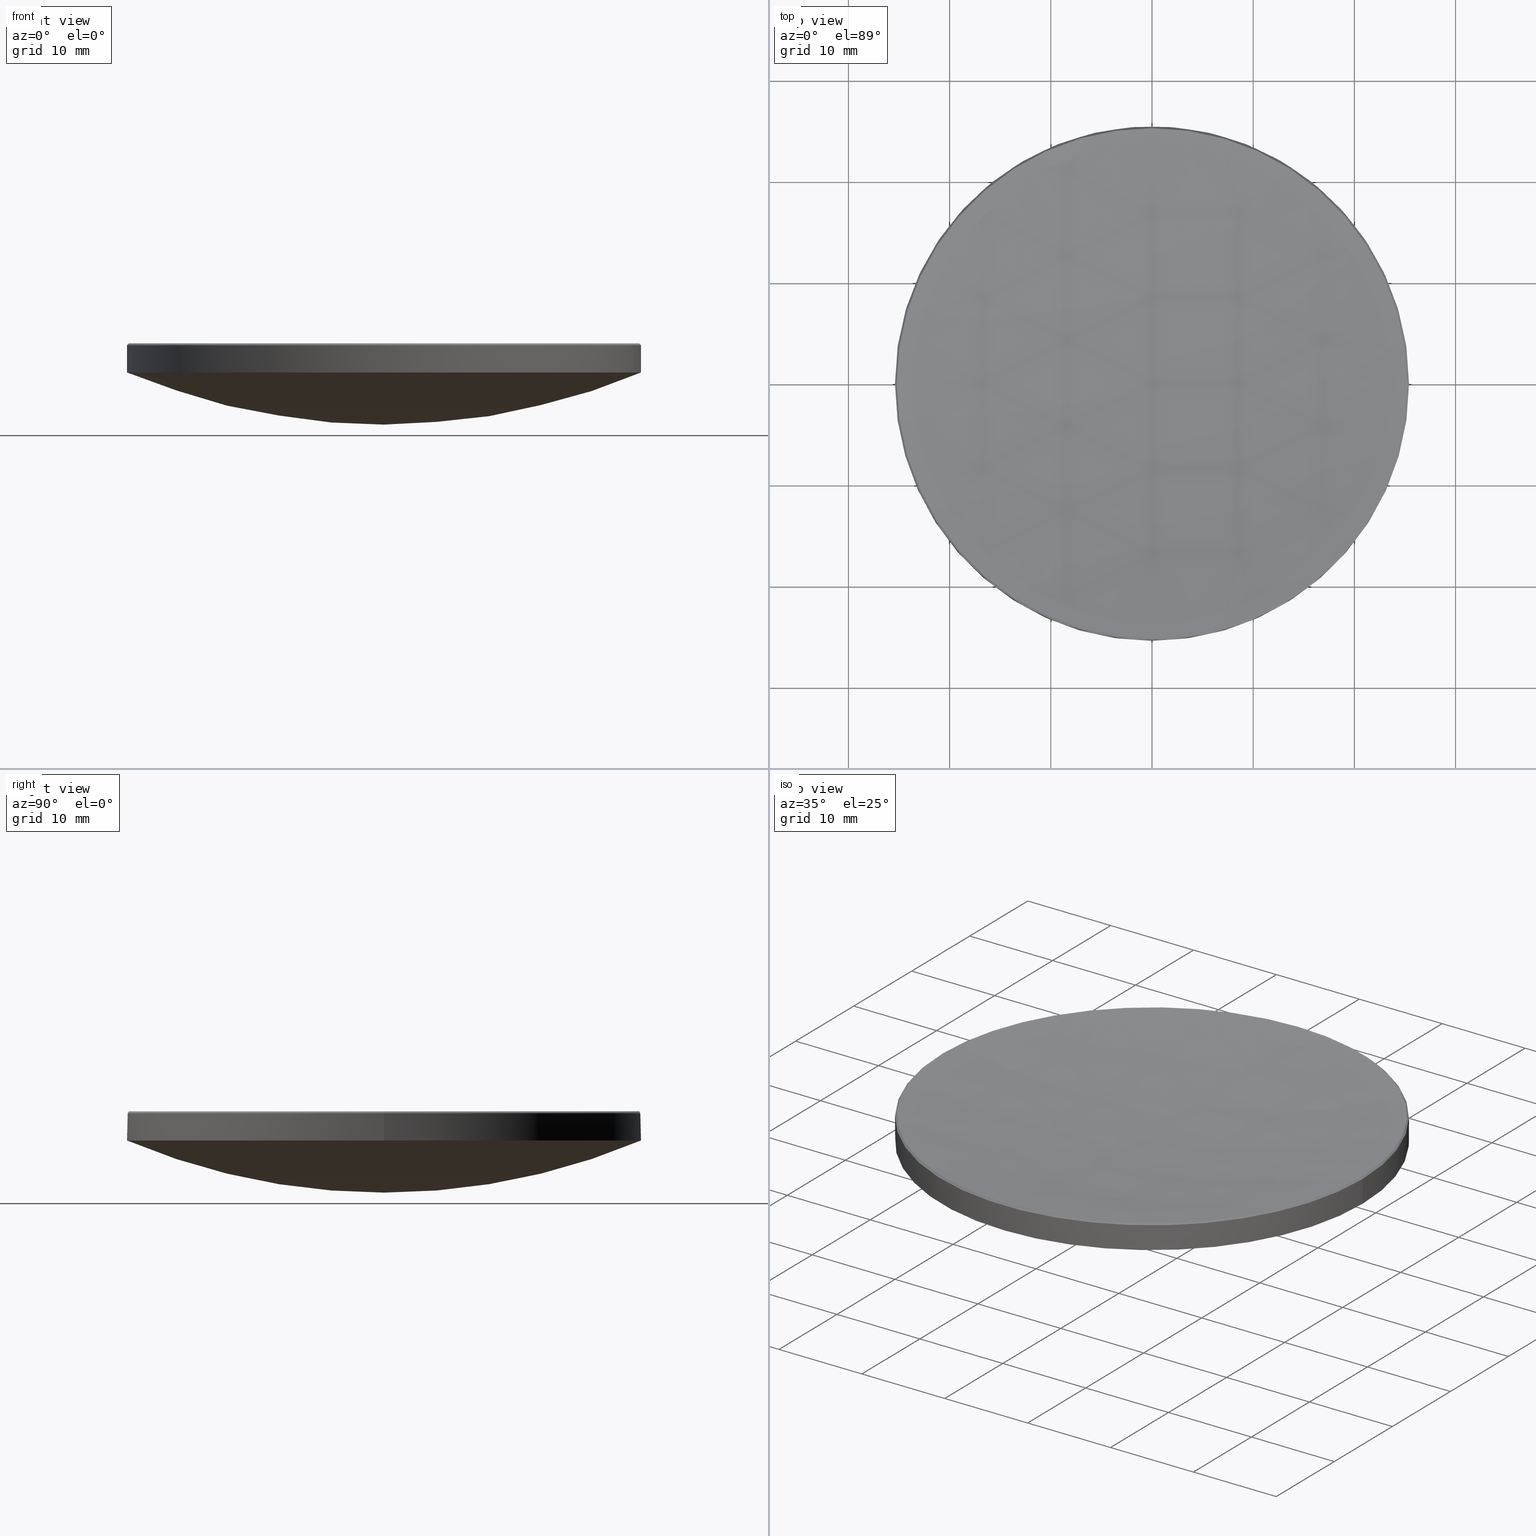
[diagram: canonical four-view strip — front | top / right | iso, engineering-drawing reading convention]
A machine part, canonical four-view strip (front | top / right | iso — engineering-drawing reading convention). The complete STEP part file that produces these views, byte-faithful:
ISO-10303-21;
HEADER;
FILE_DESCRIPTION (( 'STEP AP214' ),
    '1' );
FILE_NAME ('GLM1-050B-200.STEP',
    '2024-08-09T02:25:23',
    ( 'Windows User' ),
    ( 'P R C' ),
    'SwSTEP 2.0',
    'SolidWorks 2022',
    '' );
FILE_SCHEMA (( 'AUTOMOTIVE_DESIGN' ));
ENDSEC;

DATA;
#1 = CONICAL_SURFACE ( 'NONE', #201, 25.22595727592941373, 0.7853981633974184140 ) ;
#2 = CARTESIAN_POINT ( 'NONE',  ( 25.22595727592940662, 3.099945826586880264E-15, 15.87404272407055927 ) ) ;
#3 = CARTESIAN_POINT ( 'NONE',  ( 25.39999999999999858, 3.110602869834276865E-15, 15.69999999999996376 ) ) ;
#4 = EDGE_CURVE ( 'NONE', #184, #187, #254, .T. ) ;
#5 = DIRECTION ( 'NONE',  ( 1.000000000000000000, 0.000000000000000000, 0.000000000000000000 ) ) ;
#6 = VECTOR ( 'NONE', #169, 1000.000000000000000 ) ;
#7 = SURFACE_STYLE_USAGE ( .BOTH. , #22 ) ;
#8 =( NAMED_UNIT ( * ) PLANE_ANGLE_UNIT ( ) SI_UNIT ( $, .RADIAN. ) );
#9 = PRESENTATION_STYLE_ASSIGNMENT (( #7 ) ) ;
#10 = CIRCLE ( 'NONE', #280, 25.39999999999999503 ) ;
#11 = ORIENTED_EDGE ( 'NONE', *, *, #240, .T. ) ;
#12 = EDGE_LOOP ( 'NONE', ( #33, #143, #35, #123, #15 ) ) ;
#13 = PRODUCT_DEFINITION_SHAPE ( 'NONE', 'NONE',  #171 ) ;
#14 = EDGE_LOOP ( 'NONE', ( #213, #42, #232, #189, #61 ) ) ;
#15 = ORIENTED_EDGE ( 'NONE', *, *, #116, .F. ) ;
#16 = AXIS2_PLACEMENT_3D ( 'NONE', #89, #165, #255 ) ;
#17 = FACE_OUTER_BOUND ( 'NONE', #31, .T. ) ;
#18 = DIRECTION ( 'NONE',  ( 1.000000000000000000, 0.000000000000000000, 0.000000000000000000 ) ) ;
#19 = FACE_OUTER_BOUND ( 'NONE', #14, .T. ) ;
#20 = CYLINDRICAL_SURFACE ( 'NONE', #36, 25.39999999999999858 ) ;
#21 = VECTOR ( 'NONE', #74, 1000.000000000000000 ) ;
#22 = SURFACE_SIDE_STYLE ('',( #206 ) ) ;
#23 = CLOSED_SHELL ( 'NONE', ( #27, #129, #83, #175, #247, #88, #233, #212 ) ) ;
#24 = FACE_OUTER_BOUND ( 'NONE', #62, .T. ) ;
#25 = PRODUCT_RELATED_PRODUCT_CATEGORY ( 'part', '', ( #67 ) ) ;
#26 = UNCERTAINTY_MEASURE_WITH_UNIT (LENGTH_MEASURE( 1.000000000000000082E-05 ), #181, 'distance_accuracy_value', 'NONE');
#27 = ADVANCED_FACE ( 'NONE', ( #192 ), #1, .T. ) ;
#28 = DIRECTION ( 'NONE',  ( 1.000000000000000000, 0.000000000000000000, 0.000000000000000000 ) ) ;
#29 = AXIS2_PLACEMENT_3D ( 'NONE', #110, #93, #18 ) ;
#30 = ORIENTED_EDGE ( 'NONE', *, *, #162, .T. ) ;
#31 = EDGE_LOOP ( 'NONE', ( #177, #228, #146, #86 ) ) ;
#32 = STYLED_ITEM ( 'NONE', ( #107 ), #68 ) ;
#33 = ORIENTED_EDGE ( 'NONE', *, *, #92, .F. ) ;
#34 = SURFACE_SIDE_STYLE ('',( #60 ) ) ;
#35 = ORIENTED_EDGE ( 'NONE', *, *, #53, .F. ) ;
#36 = AXIS2_PLACEMENT_3D ( 'NONE', #128, #216, #72 ) ;
#37 = EDGE_CURVE ( 'NONE', #82, #161, #155, .T. ) ;
#38 = CARTESIAN_POINT ( 'NONE',  ( 0.000000000000000000, 0.000000000000000000, 0.000000000000000000 ) ) ;
#39 = ORIENTED_EDGE ( 'NONE', *, *, #275, .T. ) ;
#40 = PRESENTATION_LAYER_ASSIGNMENT (  '', '', ( #32 ) ) ;
#41 = CARTESIAN_POINT ( 'NONE',  ( 0.000000000000000000, 0.000000000000000000, 15.87404272407055927 ) ) ;
#42 = ORIENTED_EDGE ( 'NONE', *, *, #250, .T. ) ;
#43 = CONICAL_SURFACE ( 'NONE', #272, 25.22595727592941373, 0.7853981633974184140 ) ;
#44 = CARTESIAN_POINT ( 'NONE',  ( 0.000000000000000000, 25.39999999999998437, 12.99999999999999822 ) ) ;
#45 = FACE_OUTER_BOUND ( 'NONE', #100, .T. ) ;
#46 = CARTESIAN_POINT ( 'NONE',  ( 0.000000000000000000, 0.000000000000000000, 15.87404272407055927 ) ) ;
#47 = SPHERICAL_SURFACE ( 'NONE', #190, 65.15999999999999659 ) ;
#48 = CARTESIAN_POINT ( 'NONE',  ( -25.22595727592940662, 0.000000000000000000, 15.87404272407055927 ) ) ;
#49 =( NAMED_UNIT ( * ) PLANE_ANGLE_UNIT ( ) SI_UNIT ( $, .RADIAN. ) );
#50 = CIRCLE ( 'NONE', #197, 171.5999999999999659 ) ;
#51 = CARTESIAN_POINT ( 'NONE',  ( 0.000000000000000000, 0.000000000000000000, 13.00000000000000000 ) ) ;
#52 = DIRECTION ( 'NONE',  ( 0.000000000000000000, 0.000000000000000000, -1.000000000000000000 ) ) ;
#53 = EDGE_CURVE ( 'NONE', #229, #187, #109, .T. ) ;
#54 = CARTESIAN_POINT ( 'NONE',  ( -25.39999999999999858, 0.000000000000000000, 15.69999999999996376 ) ) ;
#55 = DIRECTION ( 'NONE',  ( 0.000000000000000000, 1.000000000000000000, 0.000000000000000000 ) ) ;
#56 = AXIS2_PLACEMENT_3D ( 'NONE', #199, #282, #242 ) ;
#57 = ORIENTED_EDGE ( 'NONE', *, *, #262, .F. ) ;
#58 = UNCERTAINTY_MEASURE_WITH_UNIT (LENGTH_MEASURE( 1.000000000000000082E-05 ), #80, 'distance_accuracy_value', 'NONE');
#59 = ORIENTED_EDGE ( 'NONE', *, *, #227, .T. ) ;
#60 = SURFACE_STYLE_FILL_AREA ( #188 ) ;
#61 = ORIENTED_EDGE ( 'NONE', *, *, #162, .F. ) ;
#62 = EDGE_LOOP ( 'NONE', ( #75, #105, #30, #144, #39 ) ) ;
#63 = CIRCLE ( 'NONE', #269, 65.15999999999999659 ) ;
#64 = CARTESIAN_POINT ( 'NONE',  ( 0.000000000000000000, 0.000000000000000000, 15.69999999999996376 ) ) ;
#65 = DIRECTION ( 'NONE',  ( -0.000000000000000000, -0.000000000000000000, 1.000000000000000000 ) ) ;
#66 = CIRCLE ( 'NONE', #153, 25.39999999999999858 ) ;
#67 = PRODUCT ( 'GLM1-050B-200', 'GLM1-050B-200', '', ( #191 ) ) ;
#68 = ADVANCED_BREP_SHAPE_REPRESENTATION ( 'GLM1-050B-200', ( #237, #178 ), #207 ) ;
#69 = CARTESIAN_POINT ( 'NONE',  ( 0.000000000000000000, 3.989899271622076049E-15, 7.845546410311113661 ) ) ;
#70 = CARTESIAN_POINT ( 'NONE',  ( -25.22595727592941373, 0.000000000000000000, 15.87404272407055927 ) ) ;
#71 = DIRECTION ( 'NONE',  ( -1.000000000000000000, 1.224646799147353207E-16, 0.000000000000000000 ) ) ;
#72 = DIRECTION ( 'NONE',  ( -1.000000000000000000, 0.000000000000000000, 0.000000000000000000 ) ) ;
#73 = EDGE_CURVE ( 'NONE', #187, #229, #66, .T. ) ;
#74 = DIRECTION ( 'NONE',  ( -0.000000000000000000, -0.000000000000000000, -1.000000000000000000 ) ) ;
#75 = ORIENTED_EDGE ( 'NONE', *, *, #250, .F. ) ;
#76 = CIRCLE ( 'NONE', #277, 171.5999999999999659 ) ;
#77 = MECHANICAL_DESIGN_GEOMETRIC_PRESENTATION_REPRESENTATION (  '', ( #32 ), #258 ) ;
#78 = DIRECTION ( 'NONE',  ( 1.000000000000000000, 0.000000000000000000, 0.000000000000000000 ) ) ;
#79 = PRESENTATION_LAYER_ASSIGNMENT (  '', '', ( #194 ) ) ;
#80 =( LENGTH_UNIT ( ) NAMED_UNIT ( * ) SI_UNIT ( .MILLI., .METRE. ) );
#81 = SURFACE_STYLE_USAGE ( .BOTH. , #34 ) ;
#82 = VERTEX_POINT ( 'NONE', #69 ) ;
#83 = ADVANCED_FACE ( 'NONE', ( #45 ), #47, .T. ) ;
#84 = EDGE_LOOP ( 'NONE', ( #208, #11, #57, #186 ) ) ;
#85 = FILL_AREA_STYLE_COLOUR ( '', #244 ) ;
#86 = ORIENTED_EDGE ( 'NONE', *, *, #92, .T. ) ;
#87 = ORIENTED_EDGE ( 'NONE', *, *, #222, .T. ) ;
#88 = ADVANCED_FACE ( 'NONE', ( #111 ), #195, .T. ) ;
#89 = CARTESIAN_POINT ( 'NONE',  ( 0.000000000000000000, 0.000000000000000000, 73.00554641031111203 ) ) ;
#90 = CARTESIAN_POINT ( 'NONE',  ( 0.000000000000000000, 0.000000000000000000, 15.87404272407055927 ) ) ;
#91 = DIRECTION ( 'NONE',  ( -0.000000000000000000, -0.000000000000000000, 1.000000000000000000 ) ) ;
#92 = EDGE_CURVE ( 'NONE', #184, #274, #257, .T. ) ;
#93 = DIRECTION ( 'NONE',  ( -0.000000000000000000, -0.000000000000000000, 1.000000000000000000 ) ) ;
#94 = CARTESIAN_POINT ( 'NONE',  ( 0.000000000000000000, 0.000000000000000000, 15.87404272407055927 ) ) ;
#95 = DIRECTION ( 'NONE',  ( -1.224646799147353207E-16, -1.000000000000000000, 0.000000000000000000 ) ) ;
#96 = CYLINDRICAL_SURFACE ( 'NONE', #133, 25.39999999999999858 ) ;
#97 = APPLICATION_CONTEXT ( 'automotive_design' ) ;
#98 = CARTESIAN_POINT ( 'NONE',  ( 25.39999999999999858, 3.110602869834276865E-15, 20.00000000000000000 ) ) ;
#99 = FILL_AREA_STYLE_COLOUR ( '', #185 ) ;
#100 = EDGE_LOOP ( 'NONE', ( #235, #211, #120, #108 ) ) ;
#101 = PRODUCT_DEFINITION_CONTEXT ( 'detailed design', #182, 'design' ) ;
#102 = EDGE_CURVE ( 'NONE', #160, #161, #173, .T. ) ;
#103 = CIRCLE ( 'NONE', #136, 25.22595727592940662 ) ;
#104 = ORIENTED_EDGE ( 'NONE', *, *, #145, .F. ) ;
#105 = ORIENTED_EDGE ( 'NONE', *, *, #73, .T. ) ;
#106 = ORIENTED_EDGE ( 'NONE', *, *, #73, .F. ) ;
#107 = PRESENTATION_STYLE_ASSIGNMENT (( #81 ) ) ;
#108 = ORIENTED_EDGE ( 'NONE', *, *, #148, .F. ) ;
#109 = CIRCLE ( 'NONE', #263, 25.39999999999999858 ) ;
#110 = CARTESIAN_POINT ( 'NONE',  ( 0.000000000000000000, 0.000000000000000000, 15.87404272407055927 ) ) ;
#111 = FACE_OUTER_BOUND ( 'NONE', #84, .T. ) ;
#112 = DIRECTION ( 'NONE',  ( 0.000000000000000000, 1.000000000000000000, 0.000000000000000000 ) ) ;
#113 = CARTESIAN_POINT ( 'NONE',  ( -25.39999999999999858, 0.000000000000000000, 20.00000000000000000 ) ) ;
#114 =( GEOMETRIC_REPRESENTATION_CONTEXT ( 3 ) GLOBAL_UNCERTAINTY_ASSIGNED_CONTEXT ( ( #58 ) ) GLOBAL_UNIT_ASSIGNED_CONTEXT ( ( #80, #49, #154 ) ) REPRESENTATION_CONTEXT ( 'NONE', 'WORKASPACE' ) );
#115 = CARTESIAN_POINT ( 'NONE',  ( 0.000000000000000000, 0.000000000000000000, 73.00554641031111203 ) ) ;
#116 = EDGE_CURVE ( 'NONE', #274, #215, #103, .T. ) ;
#117 = CIRCLE ( 'NONE', #150, 25.22595727592940662 ) ;
#118 = CARTESIAN_POINT ( 'NONE',  ( 0.000000000000000000, 0.000000000000000000, 185.6097522242018840 ) ) ;
#119 =( NAMED_UNIT ( * ) SI_UNIT ( $, .STERADIAN. ) SOLID_ANGLE_UNIT ( ) );
#120 = ORIENTED_EDGE ( 'NONE', *, *, #102, .F. ) ;
#121 = UNCERTAINTY_MEASURE_WITH_UNIT (LENGTH_MEASURE( 1.000000000000000082E-05 ), #278, 'distance_accuracy_value', 'NONE');
#122 = AXIS2_PLACEMENT_3D ( 'NONE', #90, #65, #219 ) ;
#123 = ORIENTED_EDGE ( 'NONE', *, *, #202, .F. ) ;
#124 = ORIENTED_EDGE ( 'NONE', *, *, #222, .F. ) ;
#125 = DIRECTION ( 'NONE',  ( 0.000000000000000000, 0.000000000000000000, -1.000000000000000000 ) ) ;
#126 = ORIENTED_EDGE ( 'NONE', *, *, #116, .T. ) ;
#127 = AXIS2_PLACEMENT_3D ( 'NONE', #172, #256, #259 ) ;
#128 = CARTESIAN_POINT ( 'NONE',  ( 0.000000000000000000, 0.000000000000000000, 20.00000000000000000 ) ) ;
#129 = ADVANCED_FACE ( 'NONE', ( #17 ), #217, .F. ) ;
#130 = CARTESIAN_POINT ( 'NONE',  ( -3.110602869834275682E-15, -25.39999999999998437, 12.99999999999999822 ) ) ;
#131 = DIRECTION ( 'NONE',  ( 1.000000000000000000, 0.000000000000000000, 0.000000000000000000 ) ) ;
#132 = LINE ( 'NONE', #113, #6 ) ;
#133 = AXIS2_PLACEMENT_3D ( 'NONE', #225, #137, #158 ) ;
#134 = CARTESIAN_POINT ( 'NONE',  ( 0.000000000000000000, 0.000000000000000000, 15.69999999999996376 ) ) ;
#135 = DIRECTION ( 'NONE',  ( -1.000000000000000000, 0.000000000000000000, 0.000000000000000000 ) ) ;
#136 = AXIS2_PLACEMENT_3D ( 'NONE', #196, #91, #5 ) ;
#137 = DIRECTION ( 'NONE',  ( -0.000000000000000000, -0.000000000000000000, -1.000000000000000000 ) ) ;
#138 =( NAMED_UNIT ( * ) SI_UNIT ( $, .STERADIAN. ) SOLID_ANGLE_UNIT ( ) );
#139 = AXIS2_PLACEMENT_3D ( 'NONE', #239, #264, #149 ) ;
#140 = SHAPE_DEFINITION_REPRESENTATION ( #13, #68 ) ;
#141 = ORIENTED_EDGE ( 'NONE', *, *, #157, .F. ) ;
#142 =( NAMED_UNIT ( * ) PLANE_ANGLE_UNIT ( ) SI_UNIT ( $, .RADIAN. ) );
#143 = ORIENTED_EDGE ( 'NONE', *, *, #4, .T. ) ;
#144 = ORIENTED_EDGE ( 'NONE', *, *, #102, .T. ) ;
#145 = EDGE_CURVE ( 'NONE', #251, #184, #168, .T. ) ;
#146 = ORIENTED_EDGE ( 'NONE', *, *, #145, .T. ) ;
#147 = DIRECTION ( 'NONE',  ( 0.000000000000000000, 0.000000000000000000, -1.000000000000000000 ) ) ;
#148 = EDGE_CURVE ( 'NONE', #164, #160, #159, .T. ) ;
#149 = DIRECTION ( 'NONE',  ( 0.000000000000000000, 1.000000000000000000, 0.000000000000000000 ) ) ;
#150 = AXIS2_PLACEMENT_3D ( 'NONE', #94, #170, #270 ) ;
#151 = DIRECTION ( 'NONE',  ( -0.7071067811865263675, 0.000000000000000000, -0.7071067811865686670 ) ) ;
#152 = CARTESIAN_POINT ( 'NONE',  ( 25.39999999999999503, 3.110602869834276471E-15, 13.00000000000000000 ) ) ;
#153 = AXIS2_PLACEMENT_3D ( 'NONE', #134, #198, #131 ) ;
#154 =( NAMED_UNIT ( * ) SI_UNIT ( $, .STERADIAN. ) SOLID_ANGLE_UNIT ( ) );
#155 = CIRCLE ( 'NONE', #16, 65.15999999999999659 ) ;
#156 = FILL_AREA_STYLE ('',( #99 ) ) ;
#157 = EDGE_CURVE ( 'NONE', #273, #251, #50, .T. ) ;
#158 = DIRECTION ( 'NONE',  ( -1.000000000000000000, 0.000000000000000000, 0.000000000000000000 ) ) ;
#159 = CIRCLE ( 'NONE', #249, 25.39999999999999503 ) ;
#160 = VERTEX_POINT ( 'NONE', #261 ) ;
#161 = VERTEX_POINT ( 'NONE', #130 ) ;
#162 = EDGE_CURVE ( 'NONE', #229, #160, #132, .T. ) ;
#163 = CARTESIAN_POINT ( 'NONE',  ( 25.22595727592941373, 3.089288783339484453E-15, 15.87404272407055927 ) ) ;
#164 = VERTEX_POINT ( 'NONE', #44 ) ;
#165 = DIRECTION ( 'NONE',  ( -1.000000000000000000, 1.224646799147353207E-16, 0.000000000000000000 ) ) ;
#166 = DIRECTION ( 'NONE',  ( -0.000000000000000000, -0.000000000000000000, 1.000000000000000000 ) ) ;
#167 = DIRECTION ( 'NONE',  ( -1.000000000000000000, 0.000000000000000000, 0.000000000000000000 ) ) ;
#168 = CIRCLE ( 'NONE', #29, 25.22595727592940662 ) ;
#169 = DIRECTION ( 'NONE',  ( -0.000000000000000000, -0.000000000000000000, -1.000000000000000000 ) ) ;
#170 = DIRECTION ( 'NONE',  ( -0.000000000000000000, -0.000000000000000000, 1.000000000000000000 ) ) ;
#171 = PRODUCT_DEFINITION ( 'δ֪', '', #231, #101 ) ;
#172 = CARTESIAN_POINT ( 'NONE',  ( 0.000000000000000000, 0.000000000000000000, 73.00554641031111203 ) ) ;
#173 = CIRCLE ( 'NONE', #56, 25.39999999999999503 ) ;
#174 = LINE ( 'NONE', #98, #21 ) ;
#175 = ADVANCED_FACE ( 'NONE', ( #19 ), #20, .T. ) ;
#176 = DIRECTION ( 'NONE',  ( 0.000000000000000000, 0.000000000000000000, -1.000000000000000000 ) ) ;
#177 = ORIENTED_EDGE ( 'NONE', *, *, #227, .F. ) ;
#178 = AXIS2_PLACEMENT_3D ( 'NONE', #38, #226, #209 ) ;
#179 = APPLICATION_PROTOCOL_DEFINITION ( 'draft international standard', 'automotive_design', 1998, #97 ) ;
#180 = AXIS2_PLACEMENT_3D ( 'NONE', #51, #266, #78 ) ;
#181 =( LENGTH_UNIT ( ) NAMED_UNIT ( * ) SI_UNIT ( .MILLI., .METRE. ) );
#182 = APPLICATION_CONTEXT ( 'automotive_design' ) ;
#183 = APPLICATION_PROTOCOL_DEFINITION ( 'draft international standard', 'automotive_design', 1998, #182 ) ;
#184 = VERTEX_POINT ( 'NONE', #2 ) ;
#185 = COLOUR_RGB ( '',1.000000000000000000, 1.000000000000000000, 1.000000000000000000 ) ;
#186 = ORIENTED_EDGE ( 'NONE', *, *, #275, .F. ) ;
#187 = VERTEX_POINT ( 'NONE', #3 ) ;
#188 = FILL_AREA_STYLE ('',( #85 ) ) ;
#189 = ORIENTED_EDGE ( 'NONE', *, *, #148, .T. ) ;
#190 = AXIS2_PLACEMENT_3D ( 'NONE', #115, #167, #112 ) ;
#191 = PRODUCT_CONTEXT ( 'NONE', #97, 'mechanical' ) ;
#192 = FACE_OUTER_BOUND ( 'NONE', #12, .T. ) ;
#193 = DIRECTION ( 'NONE',  ( 1.000000000000000000, 0.000000000000000000, 0.000000000000000000 ) ) ;
#194 = STYLED_ITEM ( 'NONE', ( #9 ), #237 ) ;
#195 = SPHERICAL_SURFACE ( 'NONE', #127, 65.15999999999999659 ) ;
#196 = CARTESIAN_POINT ( 'NONE',  ( 0.000000000000000000, 0.000000000000000000, 15.87404272407055927 ) ) ;
#197 = AXIS2_PLACEMENT_3D ( 'NONE', #281, #71, #95 ) ;
#198 = DIRECTION ( 'NONE',  ( 0.000000000000000000, 0.000000000000000000, -1.000000000000000000 ) ) ;
#199 = CARTESIAN_POINT ( 'NONE',  ( 0.000000000000000000, 0.000000000000000000, 13.00000000000000000 ) ) ;
#200 = DIRECTION ( 'NONE',  ( 1.000000000000000000, -0.000000000000000000, 0.000000000000000000 ) ) ;
#201 = AXIS2_PLACEMENT_3D ( 'NONE', #41, #125, #279 ) ;
#202 = EDGE_CURVE ( 'NONE', #215, #229, #260, .T. ) ;
#203 = CARTESIAN_POINT ( 'NONE',  ( 0.000000000000000000, 1.050746953668428865E-14, 14.00975222420192168 ) ) ;
#204 = EDGE_LOOP ( 'NONE', ( #252, #104, #124, #276, #106 ) ) ;
#205 = CARTESIAN_POINT ( 'NONE',  ( 0.000000000000000000, 25.22595727592939951, 15.87404272407055927 ) ) ;
#206 = SURFACE_STYLE_FILL_AREA ( #156 ) ;
#207 =( GEOMETRIC_REPRESENTATION_CONTEXT ( 3 ) GLOBAL_UNCERTAINTY_ASSIGNED_CONTEXT ( ( #26 ) ) GLOBAL_UNIT_ASSIGNED_CONTEXT ( ( #181, #8, #138 ) ) REPRESENTATION_CONTEXT ( 'NONE', 'WORKASPACE' ) );
#208 = ORIENTED_EDGE ( 'NONE', *, *, #37, .F. ) ;
#209 = DIRECTION ( 'NONE',  ( 1.000000000000000000, 0.000000000000000000, 0.000000000000000000 ) ) ;
#210 = VERTEX_POINT ( 'NONE', #152 ) ;
#211 = ORIENTED_EDGE ( 'NONE', *, *, #37, .T. ) ;
#212 = ADVANCED_FACE ( 'NONE', ( #241 ), #43, .T. ) ;
#213 = ORIENTED_EDGE ( 'NONE', *, *, #53, .T. ) ;
#214 = VECTOR ( 'NONE', #253, 1000.000000000000000 ) ;
#215 = VERTEX_POINT ( 'NONE', #48 ) ;
#216 = DIRECTION ( 'NONE',  ( -0.000000000000000000, -0.000000000000000000, -1.000000000000000000 ) ) ;
#217 = SPHERICAL_SURFACE ( 'NONE', #139, 171.5999999999999659 ) ;
#218 = DIRECTION ( 'NONE',  ( -1.000000000000000000, 0.000000000000000000, 0.000000000000000000 ) ) ;
#219 = DIRECTION ( 'NONE',  ( 1.000000000000000000, 0.000000000000000000, 0.000000000000000000 ) ) ;
#220 = CIRCLE ( 'NONE', #180, 25.39999999999999503 ) ;
#221 = SPHERICAL_SURFACE ( 'NONE', #267, 171.5999999999999659 ) ;
#222 = EDGE_CURVE ( 'NONE', #215, #251, #117, .T. ) ;
#223 = CARTESIAN_POINT ( 'NONE',  ( 0.000000000000000000, 0.000000000000000000, 185.6097522242018840 ) ) ;
#224 = CARTESIAN_POINT ( 'NONE',  ( -3.089288783339482875E-15, -25.22595727592939951, 15.87404272407055927 ) ) ;
#225 = CARTESIAN_POINT ( 'NONE',  ( 0.000000000000000000, 0.000000000000000000, 20.00000000000000000 ) ) ;
#226 = DIRECTION ( 'NONE',  ( 0.000000000000000000, 0.000000000000000000, 1.000000000000000000 ) ) ;
#227 = EDGE_CURVE ( 'NONE', #273, #274, #76, .T. ) ;
#228 = ORIENTED_EDGE ( 'NONE', *, *, #157, .T. ) ;
#229 = VERTEX_POINT ( 'NONE', #54 ) ;
#230 = VECTOR ( 'NONE', #151, 1000.000000000000000 ) ;
#231 = PRODUCT_DEFINITION_FORMATION_WITH_SPECIFIED_SOURCE ( '�κ�', '', #67, .NOT_KNOWN. ) ;
#232 = ORIENTED_EDGE ( 'NONE', *, *, #262, .T. ) ;
#233 = ADVANCED_FACE ( 'NONE', ( #248 ), #221, .F. ) ;
#234 = MECHANICAL_DESIGN_GEOMETRIC_PRESENTATION_REPRESENTATION (  '', ( #194 ), #114 ) ;
#235 = ORIENTED_EDGE ( 'NONE', *, *, #240, .F. ) ;
#236 = DIRECTION ( 'NONE',  ( 1.000000000000000000, 0.000000000000000000, 0.000000000000000000 ) ) ;
#237 = MANIFOLD_SOLID_BREP ( '����1', #23 ) ;
#238 = CARTESIAN_POINT ( 'NONE',  ( 0.000000000000000000, 0.000000000000000000, 13.00000000000000000 ) ) ;
#239 = CARTESIAN_POINT ( 'NONE',  ( 0.000000000000000000, 0.000000000000000000, 185.6097522242018840 ) ) ;
#240 = EDGE_CURVE ( 'NONE', #82, #164, #63, .T. ) ;
#241 = FACE_OUTER_BOUND ( 'NONE', #204, .T. ) ;
#242 = DIRECTION ( 'NONE',  ( 1.000000000000000000, 0.000000000000000000, 0.000000000000000000 ) ) ;
#243 = DIRECTION ( 'NONE',  ( 0.000000000000000000, 0.000000000000000000, -1.000000000000000000 ) ) ;
#244 = COLOUR_RGB ( '',1.000000000000000000, 1.000000000000000000, 1.000000000000000000 ) ;
#245 = CARTESIAN_POINT ( 'NONE',  ( 0.000000000000000000, 0.000000000000000000, 13.00000000000000000 ) ) ;
#246 = DIRECTION ( 'NONE',  ( 1.000000000000000000, 0.000000000000000000, 0.000000000000000000 ) ) ;
#247 = ADVANCED_FACE ( 'NONE', ( #24 ), #96, .T. ) ;
#248 = FACE_OUTER_BOUND ( 'NONE', #271, .T. ) ;
#249 = AXIS2_PLACEMENT_3D ( 'NONE', #238, #166, #193 ) ;
#250 = EDGE_CURVE ( 'NONE', #187, #210, #174, .T. ) ;
#251 = VERTEX_POINT ( 'NONE', #224 ) ;
#252 = ORIENTED_EDGE ( 'NONE', *, *, #4, .F. ) ;
#253 = DIRECTION ( 'NONE',  ( 0.7071067811865263675, 8.659560562354675246E-17, -0.7071067811865686670 ) ) ;
#254 = LINE ( 'NONE', #163, #214 ) ;
#255 = DIRECTION ( 'NONE',  ( -1.224646799147352961E-16, -1.000000000000000000, 0.000000000000000000 ) ) ;
#256 = DIRECTION ( 'NONE',  ( -1.000000000000000000, 0.000000000000000000, 0.000000000000000000 ) ) ;
#257 = CIRCLE ( 'NONE', #122, 25.22595727592940662 ) ;
#258 =( GEOMETRIC_REPRESENTATION_CONTEXT ( 3 ) GLOBAL_UNCERTAINTY_ASSIGNED_CONTEXT ( ( #121 ) ) GLOBAL_UNIT_ASSIGNED_CONTEXT ( ( #278, #142, #119 ) ) REPRESENTATION_CONTEXT ( 'NONE', 'WORKASPACE' ) );
#259 = DIRECTION ( 'NONE',  ( 0.000000000000000000, 1.000000000000000000, 0.000000000000000000 ) ) ;
#260 = LINE ( 'NONE', #70, #230 ) ;
#261 = CARTESIAN_POINT ( 'NONE',  ( -25.39999999999999503, 0.000000000000000000, 13.00000000000000000 ) ) ;
#262 = EDGE_CURVE ( 'NONE', #210, #164, #10, .T. ) ;
#263 = AXIS2_PLACEMENT_3D ( 'NONE', #64, #147, #236 ) ;
#264 = DIRECTION ( 'NONE',  ( -1.000000000000000000, 0.000000000000000000, 0.000000000000000000 ) ) ;
#265 = CARTESIAN_POINT ( 'NONE',  ( 0.000000000000000000, 0.000000000000000000, 73.00554641031111203 ) ) ;
#266 = DIRECTION ( 'NONE',  ( -0.000000000000000000, -0.000000000000000000, 1.000000000000000000 ) ) ;
#267 = AXIS2_PLACEMENT_3D ( 'NONE', #223, #135, #55 ) ;
#268 = DIRECTION ( 'NONE',  ( -0.000000000000000000, -0.000000000000000000, 1.000000000000000000 ) ) ;
#269 = AXIS2_PLACEMENT_3D ( 'NONE', #265, #200, #52 ) ;
#270 = DIRECTION ( 'NONE',  ( 1.000000000000000000, 0.000000000000000000, 0.000000000000000000 ) ) ;
#271 = EDGE_LOOP ( 'NONE', ( #141, #59, #126, #87 ) ) ;
#272 = AXIS2_PLACEMENT_3D ( 'NONE', #46, #243, #218 ) ;
#273 = VERTEX_POINT ( 'NONE', #203 ) ;
#274 = VERTEX_POINT ( 'NONE', #205 ) ;
#275 = EDGE_CURVE ( 'NONE', #161, #210, #220, .T. ) ;
#276 = ORIENTED_EDGE ( 'NONE', *, *, #202, .T. ) ;
#277 = AXIS2_PLACEMENT_3D ( 'NONE', #118, #246, #176 ) ;
#278 =( LENGTH_UNIT ( ) NAMED_UNIT ( * ) SI_UNIT ( .MILLI., .METRE. ) );
#279 = DIRECTION ( 'NONE',  ( -1.000000000000000000, 0.000000000000000000, 0.000000000000000000 ) ) ;
#280 = AXIS2_PLACEMENT_3D ( 'NONE', #245, #268, #28 ) ;
#281 = CARTESIAN_POINT ( 'NONE',  ( 0.000000000000000000, 0.000000000000000000, 185.6097522242018840 ) ) ;
#282 = DIRECTION ( 'NONE',  ( -0.000000000000000000, -0.000000000000000000, 1.000000000000000000 ) ) ;
ENDSEC;
END-ISO-10303-21;
